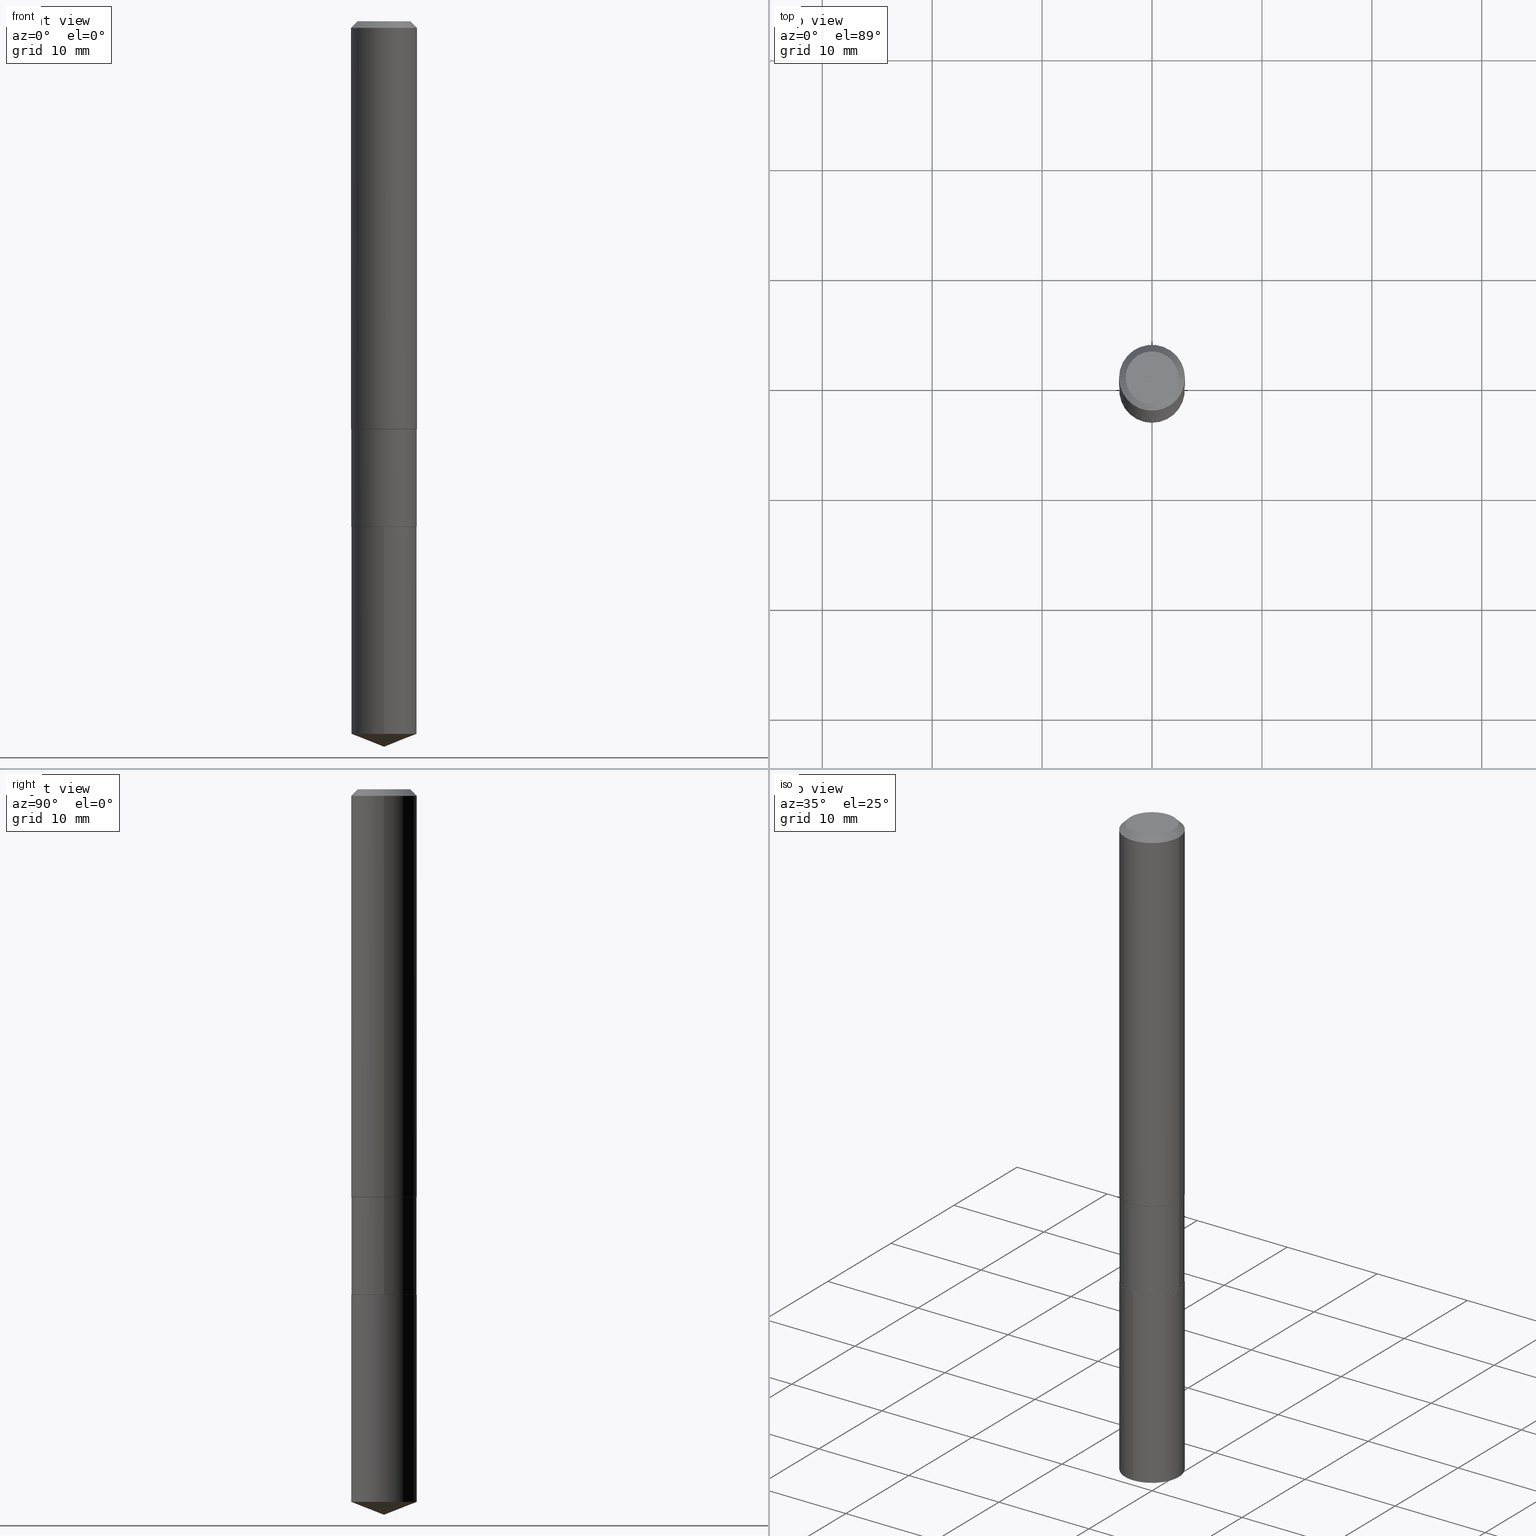
[diagram: canonical four-view strip — front | top / right | iso, engineering-drawing reading convention]
A machine part, canonical four-view strip (front | top / right | iso — engineering-drawing reading convention). The complete STEP part file that produces these views, byte-faithful:
ISO-10303-21;
HEADER;
FILE_DESCRIPTION (( 'STEP AP203' ),
    '1' );
FILE_NAME ('56409.STEP',
    '2024-04-24T17:18:07',
    ( '' ),
    ( '' ),
    'SwSTEP 2.0',
    'SolidWorks 2023',
    '' );
FILE_SCHEMA (( 'CONFIG_CONTROL_DESIGN' ));
ENDSEC;

DATA;
#1 = CALENDAR_DATE ( 2024, 24, 4 ) ;
#2 = AXIS2_PLACEMENT_3D ( 'NONE', #237, #128, #315 ) ;
#3 = EDGE_CURVE ( 'NONE', #216, #64, #41, .T. ) ;
#4 = ORIENTED_EDGE ( 'NONE', *, *, #467, .F. ) ;
#5 = AXIS2_PLACEMENT_3D ( 'NONE', #481, #365, #172 ) ;
#6 = CARTESIAN_POINT ( 'NONE',  ( -8.184032258247679381E-16, -0.1172000000000088804, -2.552233692257928510 ) ) ;
#7 = EDGE_LOOP ( 'NONE', ( #298, #334 ) ) ;
#8 = CARTESIAN_POINT ( 'NONE',  ( 0.000000000000000000, 0.000000000000000000, 0.000000000000000000 ) ) ;
#9 = CARTESIAN_POINT ( 'NONE',  ( 0.1171999999999999709, -8.184032258248302581E-16, 5.714879181232835073E-30 ) ) ;
#10 = EDGE_CURVE ( 'NONE', #490, #445, #326, .T. ) ;
#11 = CARTESIAN_POINT ( 'NONE',  ( 3.570139910149679929E-29, -5.097213606577107280E-15, -1.459899999999999531 ) ) ;
#12 = LINE ( 'NONE', #279, #19 ) ;
#13 = AXIS2_PLACEMENT_3D ( 'NONE', #42, #180, #65 ) ;
#14 = DIRECTION ( 'NONE',  ( 0.7071067811865460184, -7.319954787623251312E-15, -0.7071067811865490160 ) ) ;
#15 = ORIENTED_EDGE ( 'NONE', *, *, #471, .T. ) ;
#16 = CC_DESIGN_PERSON_AND_ORGANIZATION_ASSIGNMENT ( #489, #260, ( #428 ) ) ;
#17 = DIRECTION ( 'NONE',  ( 1.000000000000000000, -6.982962677686266711E-15, 4.876176775795935793E-29 ) ) ;
#18 = ORIENTED_EDGE ( 'NONE', *, *, #476, .T. ) ;
#19 = VECTOR ( 'NONE', #161, 39.37007874015748143 ) ;
#20 = CIRCLE ( 'NONE', #226, 0.1181000000000001632 ) ;
#21 = ORIENTED_EDGE ( 'NONE', *, *, #10, .F. ) ;
#22 = CARTESIAN_POINT ( 'NONE',  ( -0.09447999999999998066, 7.009847083995354710E-16, -2.700101262760559836E-17 ) ) ;
#23 = DIRECTION ( 'NONE',  ( 1.000000000000000000, -6.982962677686262766E-15, 0.000000000000000000 ) ) ;
#24 = DIRECTION ( 'NONE',  ( -6.982962677686265922E-15, -1.000000000000000000, 2.330928322239132474E-15 ) ) ;
#25 = CC_DESIGN_APPROVAL ( #251, ( #428 ) ) ;
#26 = LINE ( 'NONE', #478, #310 ) ;
#27 = APPROVAL ( #67, 'UNSPECIFIED' ) ;
#28 = PLANE ( 'NONE',  #337 ) ;
#29 = ORIENTED_EDGE ( 'NONE', *, *, #393, .T. ) ;
#30 = AXIS2_PLACEMENT_3D ( 'NONE', #230, #119, #72 ) ;
#31 = CIRCLE ( 'NONE', #440, 0.09447999999999998066 ) ;
#32 = ORIENTED_EDGE ( 'NONE', *, *, #209, .F. ) ;
#33 = VERTEX_POINT ( 'NONE', #391 ) ;
#34 = EDGE_CURVE ( 'NONE', #73, #33, #190, .T. ) ;
#35 = VERTEX_POINT ( 'NONE', #343 ) ;
#36 = DIRECTION ( 'NONE',  ( -6.982962677686265922E-15, -1.000000000000000000, 4.661856644478264948E-15 ) ) ;
#37 = VECTOR ( 'NONE', #348, 39.37007874015748143 ) ;
#38 = ORIENTED_EDGE ( 'NONE', *, *, #356, .F. ) ;
#39 = COORDINATED_UNIVERSAL_TIME_OFFSET ( 5, 0, .BEHIND. ) ;
#40 = CYLINDRICAL_SURFACE ( 'NONE', #169, 0.1171999999999999709 ) ;
#41 = LINE ( 'NONE', #228, #144 ) ;
#42 = CARTESIAN_POINT ( 'NONE',  ( 4.428744008001282238E-29, -6.323072704644935995E-15, -1.810999999999999943 ) ) ;
#43 = CIRCLE ( 'NONE', #289, 0.1171999999999999986 ) ;
#44 = ADVANCED_FACE ( 'NONE', ( #383 ), #138, .T. ) ;
#45 = DIRECTION ( 'NONE',  ( -1.000000000000000000, 6.982962677686266711E-15, 0.000000000000000000 ) ) ;
#46 = DIRECTION ( 'NONE',  ( -2.445468806185136597E-29, 3.491481338843145583E-15, 1.000000000000000000 ) ) ;
#47 = DIRECTION ( 'NONE',  ( 1.000000000000000000, -6.982962677686265133E-15, 0.000000000000000000 ) ) ;
#48 = EDGE_LOOP ( 'NONE', ( #182, #364, #446, #4 ) ) ;
#49 = APPROVAL_PERSON_ORGANIZATION ( #114, #27, #351 ) ;
#50 = FACE_OUTER_BOUND ( 'NONE', #164, .T. ) ;
#51 = DIRECTION ( 'NONE',  ( -2.438088387897960049E-29, 3.491481338843145188E-15, 1.000000000000000000 ) ) ;
#52 = CALENDAR_DATE ( 2024, 24, 4 ) ;
#53 = CONICAL_SURFACE ( 'NONE', #30, 99.94676754583977640, 1.195550537616118847 ) ;
#54 = VECTOR ( 'NONE', #63, 39.37007874015748143 ) ;
#55 = EDGE_CURVE ( 'NONE', #340, #325, #92, .T. ) ;
#56 = ORIENTED_EDGE ( 'NONE', *, *, #393, .F. ) ;
#57 = FACE_OUTER_BOUND ( 'NONE', #154, .T. ) ;
#58 = ORIENTED_EDGE ( 'NONE', *, *, #3, .F. ) ;
#59 = EDGE_LOOP ( 'NONE', ( #15, #225, #102, #448 ) ) ;
#60 = EDGE_CURVE ( 'NONE', #33, #244, #390, .T. ) ;
#61 = COORDINATED_UNIVERSAL_TIME_OFFSET ( 5, 0, .BEHIND. ) ;
#62 = AXIS2_PLACEMENT_3D ( 'NONE', #8, #312, #463 ) ;
#63 = DIRECTION ( 'NONE',  ( -0.7071067811865340280, 7.493145998870305251E-15, 0.7071067811865610064 ) ) ;
#64 = VERTEX_POINT ( 'NONE', #384 ) ;
#65 = DIRECTION ( 'NONE',  ( 1.000000000000000000, -6.982962677686265133E-15, 0.000000000000000000 ) ) ;
#66 = ORIENTED_EDGE ( 'NONE', *, *, #166, .T. ) ;
#67 = APPROVAL_STATUS ( 'not_yet_approved' ) ;
#68 = CYLINDRICAL_SURFACE ( 'NONE', #82, 0.1171999999999999986 ) ;
#69 = ORIENTED_EDGE ( 'NONE', *, *, #150, .T. ) ;
#70 = DATE_AND_TIME ( #454, #236 ) ;
#71 = ADVANCED_FACE ( 'NONE', ( #198 ), #316, .T. ) ;
#72 = DIRECTION ( 'NONE',  ( -6.982962677686265922E-15, -1.000000000000000000, 3.498627837350010928E-15 ) ) ;
#73 = VERTEX_POINT ( 'NONE', #160 ) ;
#74 = CIRCLE ( 'NONE', #201, 0.1180999999999999966 ) ;
#75 = ORIENTED_EDGE ( 'NONE', *, *, #107, .F. ) ;
#76 = DIRECTION ( 'NONE',  ( 2.438088387897960049E-29, -3.491481338843145188E-15, -1.000000000000000000 ) ) ;
#77 = DIRECTION ( 'NONE',  ( -2.445468806185136597E-29, 3.491481338843145583E-15, 1.000000000000000000 ) ) ;
#78 = DIRECTION ( 'NONE',  ( 1.000000000000000000, -6.982962677686266711E-15, 0.000000000000000000 ) ) ;
#79 = CARTESIAN_POINT ( 'NONE',  ( 0.1166999999999999982, -7.137984449130923049E-15, -1.810999999999999943 ) ) ;
#80 = ORIENTED_EDGE ( 'NONE', *, *, #476, .F. ) ;
#81 = AXIS2_PLACEMENT_3D ( 'NONE', #359, #429, #23 ) ;
#82 = AXIS2_PLACEMENT_3D ( 'NONE', #461, #207, #210 ) ;
#83 = APPROVAL ( #265, 'UNSPECIFIED' ) ;
#84 = DIRECTION ( 'NONE',  ( -2.445468806185136597E-29, 3.491481338843145583E-15, 1.000000000000000000 ) ) ;
#85 = LINE ( 'NONE', #238, #211 ) ;
#86 = ADVANCED_FACE ( 'NONE', ( #204 ), #308, .T. ) ;
#87 = CARTESIAN_POINT ( 'NONE',  ( 3.572340832075246748E-29, -5.100355939782065986E-15, -1.460799999999999876 ) ) ;
#88 = VERTEX_POINT ( 'NONE', #165 ) ;
#89 = APPROVAL_DATE_TIME ( #480, #27 ) ;
#90 = MECHANICAL_CONTEXT ( 'NONE', #174, 'mechanical' ) ;
#91 = EDGE_CURVE ( 'NONE', #432, #73, #466, .T. ) ;
#92 = CIRCLE ( 'NONE', #416, 0.1171999999999999986 ) ;
#93 = LOCAL_TIME ( 13, 18, 7.000000000000000000, #375 ) ;
#94 = CARTESIAN_POINT ( 'NONE',  ( 5.776197320209327532E-31, -8.246878922347559293E-17, -0.02362000000000014088 ) ) ;
#95 = CARTESIAN_POINT ( 'NONE',  ( 3.572340832075246748E-29, -5.100355939782065986E-15, -1.460799999999999876 ) ) ;
#96 = LINE ( 'NONE', #176, #54 ) ;
#97 =( NAMED_UNIT ( * ) PLANE_ANGLE_UNIT ( ) SI_UNIT ( $, .RADIAN. ) );
#98 = EDGE_LOOP ( 'NONE', ( #224, #69, #177, #423 ) ) ;
#99 = CLOSED_SHELL ( 'NONE', ( #246, #388, #232, #404, #318 ) ) ;
#100 = CIRCLE ( 'NONE', #139, 0.1171999999999999986 ) ;
#101 = FACE_OUTER_BOUND ( 'NONE', #98, .T. ) ;
#102 = ORIENTED_EDGE ( 'NONE', *, *, #282, .F. ) ;
#103 = APPROVAL_DATE_TIME ( #442, #251 ) ;
#104 = EDGE_LOOP ( 'NONE', ( #58, #482, #368, #410 ) ) ;
#105 = DIMENSIONAL_EXPONENTS ( 1.000000000000000000, 0.000000000000000000, 0.000000000000000000, 0.000000000000000000, 0.000000000000000000, 0.000000000000000000, 0.000000000000000000 ) ;
#106 = APPLICATION_PROTOCOL_DEFINITION ( 'international standard', 'config_control_design', 1994, #406 ) ;
#107 = EDGE_CURVE ( 'NONE', #374, #254, #381, .T. ) ;
#108 = EDGE_LOOP ( 'NONE', ( #255, #403, #248, #120 ) ) ;
#109 = VECTOR ( 'NONE', #127, 39.37007874015748143 ) ;
#110 = CALENDAR_DATE ( 2024, 24, 4 ) ;
#111 = DIRECTION ( 'NONE',  ( -6.982962677686265922E-15, -1.000000000000000000, 3.498627837350010928E-15 ) ) ;
#112 = ORIENTED_EDGE ( 'NONE', *, *, #155, .F. ) ;
#113 = EDGE_CURVE ( 'NONE', #244, #35, #12, .T. ) ;
#114 = PERSON_AND_ORGANIZATION ( #249, #132 ) ;
#115 = LINE ( 'NONE', #425, #433 ) ;
#116 = EDGE_LOOP ( 'NONE', ( #29, #157 ) ) ;
#117 = EDGE_CURVE ( 'NONE', #437, #340, #85, .T. ) ;
#118 = DATE_TIME_ROLE ( 'creation_date' ) ;
#119 = DIRECTION ( 'NONE',  ( -2.445866323305288275E-29, 3.490912071701818882E-15, 1.000000000000000000 ) ) ;
#120 = ORIENTED_EDGE ( 'NONE', *, *, #60, .F. ) ;
#121 = LINE ( 'NONE', #200, #256 ) ;
#122 = CYLINDRICAL_SURFACE ( 'NONE', #62, 0.1181000000000000799 ) ;
#123 = DIRECTION ( 'NONE',  ( 2.445468806185136597E-29, -3.491481338843145583E-15, -1.000000000000000000 ) ) ;
#124 = FACE_OUTER_BOUND ( 'NONE', #116, .T. ) ;
#125 = DIRECTION ( 'NONE',  ( 1.000000000000000000, -6.982962677686265133E-15, 0.000000000000000000 ) ) ;
#126 = CARTESIAN_POINT ( 'NONE',  ( -0.1166999999999999982, -5.493869332012898894E-15, -1.810999999999999943 ) ) ;
#127 = DIRECTION ( 'NONE',  ( 0.7071067811866078578, -2.468850131082888544E-15, 0.7071067811864871766 ) ) ;
#128 = DIRECTION ( 'NONE',  ( -2.445468806185136597E-29, 3.491481338843145583E-15, 1.000000000000000000 ) ) ;
#129 = EDGE_CURVE ( 'NONE', #88, #64, #407, .T. ) ;
#130 = DIRECTION ( 'NONE',  ( -6.982962677686265922E-15, -1.000000000000000000, 2.330928322239132474E-15 ) ) ;
#131 = VECTOR ( 'NONE', #465, 39.37007874015748143 ) ;
#132 = ORGANIZATION ( 'UNSPECIFIED', 'UNSPECIFIED', '' ) ;
#133 = MANIFOLD_SOLID_BREP ( 'Body-Move/Copy2[2]', #483 ) ;
#134 = PRODUCT_RELATED_PRODUCT_CATEGORY ( 'detail', '', ( #345 ) ) ;
#135 = PRODUCT_DEFINITION_SHAPE ( 'NONE', 'NONE',  #179 ) ;
#136 =( CONVERSION_BASED_UNIT ( 'INCH', #181 ) LENGTH_UNIT ( ) NAMED_UNIT ( #105 ) );
#137 = CARTESIAN_POINT ( 'NONE',  ( 0.000000000000000000, 0.000000000000000000, 0.000000000000000000 ) ) ;
#138 = CONICAL_SURFACE ( 'NONE', #394, 0.1166999999999999982, 0.7853981633975336552 ) ;
#139 = AXIS2_PLACEMENT_3D ( 'NONE', #320, #285, #24 ) ;
#140 = CARTESIAN_POINT ( 'NONE',  ( 4.428744008001282238E-29, -6.323072704644935995E-15, -1.810999999999999943 ) ) ;
#141 =( LENGTH_UNIT ( ) NAMED_UNIT ( * ) SI_UNIT ( $, .METRE. ) );
#142 = MANIFOLD_SOLID_BREP ( 'Body-Move/Copy2[1]', #99 ) ;
#143 = CARTESIAN_POINT ( 'NONE',  ( 0.09447999999999998066, -7.704367267948738690E-16, -2.700101262759583929E-17 ) ) ;
#144 = VECTOR ( 'NONE', #430, 39.37007874015748143 ) ;
#145 = VECTOR ( 'NONE', #147, 39.37007874015748143 ) ;
#146 = PERSON_AND_ORGANIZATION_ROLE ( 'creator' ) ;
#147 = DIRECTION ( 'NONE',  ( -2.445866323305287994E-29, 3.490912071701818882E-15, 1.000000000000000000 ) ) ;
#148 = EDGE_LOOP ( 'NONE', ( #313, #56, #66, #221 ) ) ;
#149 = DATE_AND_TIME ( #110, #449 ) ;
#150 = EDGE_CURVE ( 'NONE', #432, #408, #184, .T. ) ;
#151 = EDGE_LOOP ( 'NONE', ( #21, #328, #295, #280 ) ) ;
#152 = ORIENTED_EDGE ( 'NONE', *, *, #297, .T. ) ;
#153 = DATE_AND_TIME ( #1, #93 ) ;
#154 = EDGE_LOOP ( 'NONE', ( #324, #262 ) ) ;
#155 = EDGE_CURVE ( 'NONE', #35, #216, #459, .T. ) ;
#156 = APPROVAL_DATE_TIME ( #149, #83 ) ;
#157 = ORIENTED_EDGE ( 'NONE', *, *, #10, .T. ) ;
#158 = CARTESIAN_POINT ( 'NONE',  ( -8.184032258247860819E-16, -0.1172000000000063130, -1.810999999999999721 ) ) ;
#159 = DIRECTION ( 'NONE',  ( -2.445468806185136597E-29, 3.491481338843145583E-15, 1.000000000000000000 ) ) ;
#160 = CARTESIAN_POINT ( 'NONE',  ( -0.1171999999999999986, -4.878085365567953422E-15, -1.810499999999999998 ) ) ;
#161 = DIRECTION ( 'NONE',  ( 0.7071067811865340280, -2.468850131082115460E-15, 0.7071067811865610064 ) ) ;
#162 = LOCAL_TIME ( 13, 18, 7.000000000000000000, #398 ) ;
#163 = FACE_OUTER_BOUND ( 'NONE', #371, .T. ) ;
#164 = EDGE_LOOP ( 'NONE', ( #152, #452, #112, #405 ) ) ;
#165 = CARTESIAN_POINT ( 'NONE',  ( 0.1180999999999999966, -9.071566814582237199E-16, -0.02362000000000014088 ) ) ;
#166 = EDGE_CURVE ( 'NONE', #445, #64, #379, .T. ) ;
#167 = CARTESIAN_POINT ( 'NONE',  ( -0.1180999999999999966, 7.422191030112725094E-16, -0.02362000000000014088 ) ) ;
#168 = AXIS2_PLACEMENT_3D ( 'NONE', #419, #202, #130 ) ;
#169 = AXIS2_PLACEMENT_3D ( 'NONE', #303, #263, #197 ) ;
#170 = EDGE_CURVE ( 'NONE', #437, #325, #121, .T. ) ;
#171 = SHAPE_DEFINITION_REPRESENTATION ( #135, #470 ) ;
#172 = DIRECTION ( 'NONE',  ( 1.000000000000000000, -6.982962677686265133E-15, 0.000000000000000000 ) ) ;
#173 = DIRECTION ( 'NONE',  ( -1.000000000000000000, 6.982962677686265922E-15, -4.876176775795935793E-29 ) ) ;
#174 = APPLICATION_CONTEXT ( 'configuration controlled 3d designs of mechanical parts and assemblies' ) ;
#175 = LINE ( 'NONE', #322, #131 ) ;
#176 = CARTESIAN_POINT ( 'NONE',  ( -0.1171999999999999431, -4.267599853471229564E-15, -1.460799999999999876 ) ) ;
#177 = ORIENTED_EDGE ( 'NONE', *, *, #243, .T. ) ;
#178 = CIRCLE ( 'NONE', #81, 0.1171999999999999847 ) ;
#179 = PRODUCT_DEFINITION ( 'UNKNOWN', '', #428, #203 ) ;
#180 = DIRECTION ( 'NONE',  ( -2.445468806185136597E-29, 3.491481338843145583E-15, 1.000000000000000000 ) ) ;
#181 = LENGTH_MEASURE_WITH_UNIT ( LENGTH_MEASURE( 0.02539999999999999897 ), #141 );
#182 = ORIENTED_EDGE ( 'NONE', *, *, #155, .T. ) ;
#183 = EDGE_CURVE ( 'NONE', #490, #88, #115, .T. ) ;
#184 = CIRCLE ( 'NONE', #13, 0.1166999999999999982 ) ;
#185 = ORIENTED_EDGE ( 'NONE', *, *, #34, .T. ) ;
#186 = DIRECTION ( 'NONE',  ( 1.000000000000000000, -6.982962677686267499E-15, 4.875432709231658792E-29 ) ) ;
#187 = EDGE_LOOP ( 'NONE', ( #488, #185, #271, #231 ) ) ;
#188 = PERSON_AND_ORGANIZATION ( #249, #132 ) ;
#189 = EDGE_LOOP ( 'NONE', ( #240, #380, #32 ) ) ;
#190 = CIRCLE ( 'NONE', #2, 0.1171999999999999847 ) ;
#191 = SECURITY_CLASSIFICATION ( '', '', #372 ) ;
#192 = FACE_OUTER_BOUND ( 'NONE', #441, .T. ) ;
#193 = ORIENTED_EDGE ( 'NONE', *, *, #209, .T. ) ;
#194 = DIRECTION ( 'NONE',  ( 6.982962677686265922E-15, 1.000000000000000000, -3.490912071701818882E-15 ) ) ;
#195 = DIRECTION ( 'NONE',  ( -6.982962677686265922E-15, -1.000000000000000000, 2.330928322239132474E-15 ) ) ;
#196 = DIRECTION ( 'NONE',  ( 1.000000000000000000, -6.982962677686267499E-15, 4.875432709231658792E-29 ) ) ;
#197 = DIRECTION ( 'NONE',  ( 1.000000000000000000, -6.982962677686266711E-15, 4.876176775795935793E-29 ) ) ;
#198 = FACE_OUTER_BOUND ( 'NONE', #151, .T. ) ;
#199 = AXIS2_PLACEMENT_3D ( 'NONE', #274, #159, #307 ) ;
#200 = CARTESIAN_POINT ( 'NONE',  ( 6.353899247467270624E-29, -9.072847812695893785E-15, -2.598399999999999821 ) ) ;
#201 = AXIS2_PLACEMENT_3D ( 'NONE', #94, #360, #286 ) ;
#202 = DIRECTION ( 'NONE',  ( -2.445866323305288275E-29, 3.490912071701818882E-15, 1.000000000000000000 ) ) ;
#203 = DESIGN_CONTEXT ( 'detailed design', #406, 'design' ) ;
#204 = FACE_OUTER_BOUND ( 'NONE', #187, .T. ) ;
#205 = ADVANCED_FACE ( 'NONE', ( #192 ), #473, .T. ) ;
#206 = CC_DESIGN_APPROVAL ( #83, ( #179 ) ) ;
#207 = DIRECTION ( 'NONE',  ( -2.445866323305288275E-29, 3.490912071701818882E-15, 1.000000000000000000 ) ) ;
#208 =( NAMED_UNIT ( * ) SI_UNIT ( $, .STERADIAN. ) SOLID_ANGLE_UNIT ( ) );
#209 = EDGE_CURVE ( 'NONE', #325, #340, #43, .T. ) ;
#210 = DIRECTION ( 'NONE',  ( -6.982962677686265922E-15, -1.000000000000000000, 2.330928322239132474E-15 ) ) ;
#211 = VECTOR ( 'NONE', #311, 39.37007874015748854 ) ;
#212 = AXIS2_PLACEMENT_3D ( 'NONE', #335, #453, #194 ) ;
#213 = DIRECTION ( 'NONE',  ( -2.445468806185136877E-29, 3.491481338843145188E-15, 1.000000000000000000 ) ) ;
#214 = CARTESIAN_POINT ( 'NONE',  ( 0.1166999999999999982, -7.137984449130923049E-15, -1.810999999999999943 ) ) ;
#215 = CC_DESIGN_PERSON_AND_ORGANIZATION_ASSIGNMENT ( #296, #222, ( #428 ) ) ;
#216 = VERTEX_POINT ( 'NONE', #233 ) ;
#217 = VERTEX_POINT ( 'NONE', #267 ) ;
#218 = APPROVAL_PERSON_ORGANIZATION ( #338, #83, #301 ) ;
#219 = PERSON_AND_ORGANIZATION ( #249, #132 ) ;
#220 = CARTESIAN_POINT ( 'NONE',  ( 6.603013411620882309E-46, -9.427353171913646324E-32, -2.700101262760083747E-17 ) ) ;
#221 = ORIENTED_EDGE ( 'NONE', *, *, #438, .T. ) ;
#222 = PERSON_AND_ORGANIZATION_ROLE ( 'design_supplier' ) ;
#223 = DIRECTION ( 'NONE',  ( -2.445468806185136597E-29, 3.491481338843145583E-15, 1.000000000000000000 ) ) ;
#224 = ORIENTED_EDGE ( 'NONE', *, *, #91, .F. ) ;
#225 = ORIENTED_EDGE ( 'NONE', *, *, #91, .T. ) ;
#226 = AXIS2_PLACEMENT_3D ( 'NONE', #253, #291, #444 ) ;
#227 = CARTESIAN_POINT ( 'NONE',  ( 0.1171999999999999431, -5.918759165606896047E-15, -1.460799999999999876 ) ) ;
#228 = CARTESIAN_POINT ( 'NONE',  ( -0.1181000000000000799, 8.391509709326788873E-16, -5.809262341591047988E-30 ) ) ;
#229 = FACE_OUTER_BOUND ( 'NONE', #108, .T. ) ;
#230 = CARTESIAN_POINT ( 'NONE',  ( -8.993933058545681115E-28, 1.283656662679639301E-13, 36.77167874015748339 ) ) ;
#231 = ORIENTED_EDGE ( 'NONE', *, *, #266, .F. ) ;
#232 = ADVANCED_FACE ( 'NONE', ( #163 ), #53, .T. ) ;
#233 = CARTESIAN_POINT ( 'NONE',  ( -0.1181000000000001632, -4.258062635644427505E-15, -1.459899999999999531 ) ) ;
#234 = CARTESIAN_POINT ( 'NONE',  ( 5.776197320209327532E-31, -8.246878922347559293E-17, -0.02362000000000014088 ) ) ;
#235 = AXIS2_PLACEMENT_3D ( 'NONE', #241, #392, #469 ) ;
#236 = LOCAL_TIME ( 13, 18, 7.000000000000000000, #304 ) ;
#237 = CARTESIAN_POINT ( 'NONE',  ( 4.427521273598189436E-29, -6.321326963975514491E-15, -1.810499999999999998 ) ) ;
#238 = CARTESIAN_POINT ( 'NONE',  ( 6.355351679884375868E-29, -9.070785927110006461E-15, -2.598399999999999821 ) ) ;
#239 = CYLINDRICAL_SURFACE ( 'NONE', #387, 0.1181000000000000799 ) ;
#240 = ORIENTED_EDGE ( 'NONE', *, *, #170, .F. ) ;
#241 = CARTESIAN_POINT ( 'NONE',  ( 5.776197320209327532E-31, -8.246878922347559293E-17, -0.02362000000000014088 ) ) ;
#242 = AXIS2_PLACEMENT_3D ( 'NONE', #464, #415, #196 ) ;
#243 = EDGE_CURVE ( 'NONE', #408, #33, #339, .T. ) ;
#244 = VERTEX_POINT ( 'NONE', #227 ) ;
#245 = LINE ( 'NONE', #475, #389 ) ;
#246 = ADVANCED_FACE ( 'NONE', ( #385 ), #347, .T. ) ;
#247 = LINE ( 'NONE', #484, #145 ) ;
#248 = ORIENTED_EDGE ( 'NONE', *, *, #297, .F. ) ;
#249 = PERSON ( 'UNSPECIFIED', 'UNSPECIFIED', 'UNSPECIFIED', ('UNSPECIFIED'), ('UNSPECIFIED'), ('UNSPECIFIED') ) ;
#250 = DIRECTION ( 'NONE',  ( -2.445468806185136597E-29, 3.491481338843145583E-15, 1.000000000000000000 ) ) ;
#251 = APPROVAL ( #370, 'UNSPECIFIED' ) ;
#252 = ORIENTED_EDGE ( 'NONE', *, *, #367, .F. ) ;
#253 = CARTESIAN_POINT ( 'NONE',  ( 3.570139910149679929E-29, -5.097213606577107280E-15, -1.459899999999999531 ) ) ;
#254 = VERTEX_POINT ( 'NONE', #418 ) ;
#255 = ORIENTED_EDGE ( 'NONE', *, *, #282, .T. ) ;
#256 = VECTOR ( 'NONE', #451, 39.37007874015748143 ) ;
#257 = AXIS2_PLACEMENT_3D ( 'NONE', #87, #84, #47 ) ;
#258 = ORIENTED_EDGE ( 'NONE', *, *, #117, .F. ) ;
#259 = ADVANCED_FACE ( 'NONE', ( #342 ), #122, .T. ) ;
#260 = PERSON_AND_ORGANIZATION_ROLE ( 'creator' ) ;
#261 = FACE_OUTER_BOUND ( 'NONE', #189, .T. ) ;
#262 = ORIENTED_EDGE ( 'NONE', *, *, #150, .F. ) ;
#263 = DIRECTION ( 'NONE',  ( -2.445468806185136597E-29, 3.491481338843145583E-15, 1.000000000000000000 ) ) ;
#264 = PLANE ( 'NONE',  #212 ) ;
#265 = APPROVAL_STATUS ( 'not_yet_approved' ) ;
#266 = EDGE_CURVE ( 'NONE', #217, #244, #336, .T. ) ;
#267 = CARTESIAN_POINT ( 'NONE',  ( -0.1171999999999999431, -4.878085365567953422E-15, -1.460799999999999876 ) ) ;
#268 = DIRECTION ( 'NONE',  ( 1.000000000000000000, -6.982962677686265133E-15, 0.000000000000000000 ) ) ;
#269 = ADVANCED_FACE ( 'NONE', ( #270 ), #239, .T. ) ;
#270 = FACE_OUTER_BOUND ( 'NONE', #48, .T. ) ;
#271 = ORIENTED_EDGE ( 'NONE', *, *, #60, .T. ) ;
#272 = PLANE ( 'NONE',  #354 ) ;
#273 = DIRECTION ( 'NONE',  ( -0.7071067811866078578, 7.493145998870571886E-15, 0.7071067811864871766 ) ) ;
#274 = CARTESIAN_POINT ( 'NONE',  ( 3.572340832075246748E-29, -5.100355939782065986E-15, -1.460799999999999876 ) ) ;
#275 = DIRECTION ( 'NONE',  ( -2.445866323305288275E-29, 3.490912071701818882E-15, 1.000000000000000000 ) ) ;
#276 = ADVANCED_FACE ( 'NONE', ( #472 ), #447, .T. ) ;
#277 = AXIS2_PLACEMENT_3D ( 'NONE', #11, #479, #333 ) ;
#278 = CIRCLE ( 'NONE', #257, 0.1171999999999999431 ) ;
#279 = CARTESIAN_POINT ( 'NONE',  ( 0.1171999999999999431, -5.918759165606896047E-15, -1.460799999999999876 ) ) ;
#280 = ORIENTED_EDGE ( 'NONE', *, *, #166, .F. ) ;
#281 = DIRECTION ( 'NONE',  ( -2.445866323305287994E-29, 3.490912071701818882E-15, 1.000000000000000000 ) ) ;
#282 = EDGE_CURVE ( 'NONE', #33, #73, #178, .T. ) ;
#283 = AXIS2_PLACEMENT_3D ( 'NONE', #422, #77, #125 ) ;
#284 = CC_DESIGN_APPROVAL ( #27, ( #191 ) ) ;
#285 = DIRECTION ( 'NONE',  ( -2.445866323305288275E-29, 3.490912071701818882E-15, 1.000000000000000000 ) ) ;
#286 = DIRECTION ( 'NONE',  ( 1.000000000000000000, -6.982962677686266711E-15, 0.000000000000000000 ) ) ;
#287 = CC_DESIGN_DATE_AND_TIME_ASSIGNMENT ( #153, #450, ( #191 ) ) ;
#288 = DIRECTION ( 'NONE',  ( 1.000000000000000000, -6.982962677686265133E-15, 0.000000000000000000 ) ) ;
#289 = AXIS2_PLACEMENT_3D ( 'NONE', #378, #414, #36 ) ;
#290 = AXIS2_PLACEMENT_3D ( 'NONE', #396, #250, #363 ) ;
#291 = DIRECTION ( 'NONE',  ( -2.445468806185136597E-29, 3.491481338843145583E-15, 1.000000000000000000 ) ) ;
#292 = ORIENTED_EDGE ( 'NONE', *, *, #55, .T. ) ;
#293 = PERSON_AND_ORGANIZATION ( #249, #132 ) ;
#294 = EDGE_CURVE ( 'NONE', #73, #217, #175, .T. ) ;
#295 = ORIENTED_EDGE ( 'NONE', *, *, #129, .T. ) ;
#296 = PERSON_AND_ORGANIZATION ( #249, #132 ) ;
#297 = EDGE_CURVE ( 'NONE', #244, #217, #278, .T. ) ;
#298 = ORIENTED_EDGE ( 'NONE', *, *, #107, .T. ) ;
#299 = AXIS2_PLACEMENT_3D ( 'NONE', #234, #352, #78 ) ;
#300 = CC_DESIGN_SECURITY_CLASSIFICATION ( #191, ( #428 ) ) ;
#301 = APPROVAL_ROLE ( '' ) ;
#302 = ORIENTED_EDGE ( 'NONE', *, *, #266, .T. ) ;
#303 = CARTESIAN_POINT ( 'NONE',  ( 0.000000000000000000, 0.000000000000000000, 0.000000000000000000 ) ) ;
#304 = COORDINATED_UNIVERSAL_TIME_OFFSET ( 5, 0, .BEHIND. ) ;
#305 = EDGE_LOOP ( 'NONE', ( #80, #292, #355, #331 ) ) ;
#306 = CC_DESIGN_DATE_AND_TIME_ASSIGNMENT ( #70, #118, ( #179 ) ) ;
#307 = DIRECTION ( 'NONE',  ( 1.000000000000000000, -6.982962677686265133E-15, 0.000000000000000000 ) ) ;
#308 = CYLINDRICAL_SURFACE ( 'NONE', #427, 0.1171999999999999709 ) ;
#309 = VECTOR ( 'NONE', #477, 39.37007874015748143 ) ;
#310 = VECTOR ( 'NONE', #281, 39.37007874015748143 ) ;
#311 = DIRECTION ( 'NONE',  ( 6.611014441532064222E-15, 0.9304175679820269051, 0.3665012267242910848 ) ) ;
#312 = DIRECTION ( 'NONE',  ( -2.445468806185136597E-29, 3.491481338843145583E-15, 1.000000000000000000 ) ) ;
#313 = ORIENTED_EDGE ( 'NONE', *, *, #183, .F. ) ;
#314 = UNCERTAINTY_MEASURE_WITH_UNIT (LENGTH_MEASURE( 1.000000000000000082E-05 ), #136, 'distance_accuracy_value', 'NONE');
#315 = DIRECTION ( 'NONE',  ( 1.000000000000000000, -6.982962677686262766E-15, 0.000000000000000000 ) ) ;
#316 = CONICAL_SURFACE ( 'NONE', #439, 0.1180999999999999966, 0.7853981633974461696 ) ;
#317 = DIRECTION ( 'NONE',  ( -2.445468806185136597E-29, 3.491481338843145583E-15, 1.000000000000000000 ) ) ;
#318 = ADVANCED_FACE ( 'NONE', ( #421 ), #264, .F. ) ;
#319 = CARTESIAN_POINT ( 'NONE',  ( 6.355339054476460416E-29, -9.070785927110006461E-15, -2.598399999999999821 ) ) ;
#320 = CARTESIAN_POINT ( 'NONE',  ( 4.428744008001282238E-29, -6.323072704644935995E-15, -1.810999999999999943 ) ) ;
#321 = DIRECTION ( 'NONE',  ( 1.000000000000000000, 0.000000000000000000, 0.000000000000000000 ) ) ;
#322 = CARTESIAN_POINT ( 'NONE',  ( -0.1171999999999999709, 8.327560863108372108E-16, -5.764991925778747720E-30 ) ) ;
#323 = AXIS2_PLACEMENT_3D ( 'NONE', #395, #357, #321 ) ;
#324 = ORIENTED_EDGE ( 'NONE', *, *, #471, .F. ) ;
#325 = VERTEX_POINT ( 'NONE', #6 ) ;
#326 = CIRCLE ( 'NONE', #242, 0.09447999999999998066 ) ;
#327 = LOCAL_TIME ( 13, 18, 7.000000000000000000, #39 ) ;
#328 = ORIENTED_EDGE ( 'NONE', *, *, #183, .T. ) ;
#329 = CALENDAR_DATE ( 2024, 24, 4 ) ;
#330 = ADVANCED_FACE ( 'NONE', ( #229 ), #40, .T. ) ;
#331 = ORIENTED_EDGE ( 'NONE', *, *, #361, .F. ) ;
#332 = PERSON_AND_ORGANIZATION_ROLE ( 'classification_officer' ) ;
#333 = DIRECTION ( 'NONE',  ( 1.000000000000000000, -6.982962677686270655E-15, 0.000000000000000000 ) ) ;
#334 = ORIENTED_EDGE ( 'NONE', *, *, #361, .T. ) ;
#335 = CARTESIAN_POINT ( 'NONE',  ( 4.428744008001282238E-29, -6.323072704644935995E-15, -1.810999999999999943 ) ) ;
#336 = CIRCLE ( 'NONE', #199, 0.1171999999999999431 ) ;
#337 = AXIS2_PLACEMENT_3D ( 'NONE', #140, #51, #434 ) ;
#338 = PERSON_AND_ORGANIZATION ( #249, #132 ) ;
#339 = LINE ( 'NONE', #79, #109 ) ;
#340 = VERTEX_POINT ( 'NONE', #458 ) ;
#341 = ADVANCED_FACE ( 'NONE', ( #124 ), #272, .F. ) ;
#342 = FACE_OUTER_BOUND ( 'NONE', #104, .T. ) ;
#343 = CARTESIAN_POINT ( 'NONE',  ( 0.1181000000000001632, -5.921901498811854753E-15, -1.459899999999999531 ) ) ;
#344 = DIRECTION ( 'NONE',  ( -2.445468806185136597E-29, 3.491481338843145583E-15, 1.000000000000000000 ) ) ;
#345 = PRODUCT ( '56409', '56409', '', ( #90 ) ) ;
#346 = CONICAL_SURFACE ( 'NONE', #362, 99.94676754583977640, 1.195550537616118847 ) ;
#347 = CYLINDRICAL_SURFACE ( 'NONE', #353, 0.1171999999999999986 ) ;
#348 = DIRECTION ( 'NONE',  ( -2.445468806185136877E-29, 3.491481338843145188E-15, 1.000000000000000000 ) ) ;
#349 = EDGE_CURVE ( 'NONE', #325, #374, #247, .T. ) ;
#350 = ORIENTED_EDGE ( 'NONE', *, *, #55, .F. ) ;
#351 = APPROVAL_ROLE ( '' ) ;
#352 = DIRECTION ( 'NONE',  ( -2.445468806185136597E-29, 3.491481338843145583E-15, 1.000000000000000000 ) ) ;
#353 = AXIS2_PLACEMENT_3D ( 'NONE', #382, #456, #195 ) ;
#354 = AXIS2_PLACEMENT_3D ( 'NONE', #420, #76, #173 ) ;
#355 = ORIENTED_EDGE ( 'NONE', *, *, #349, .T. ) ;
#356 = EDGE_CURVE ( 'NONE', #216, #35, #20, .T. ) ;
#357 = DIRECTION ( 'NONE',  ( 0.000000000000000000, 0.000000000000000000, 1.000000000000000000 ) ) ;
#358 = PERSON_AND_ORGANIZATION ( #249, #132 ) ;
#359 = CARTESIAN_POINT ( 'NONE',  ( 4.427521273598189436E-29, -6.321326963975514491E-15, -1.810499999999999998 ) ) ;
#360 = DIRECTION ( 'NONE',  ( -2.445468806185136597E-29, 3.491481338843145583E-15, 1.000000000000000000 ) ) ;
#361 = EDGE_CURVE ( 'NONE', #254, #374, #100, .T. ) ;
#362 = AXIS2_PLACEMENT_3D ( 'NONE', #377, #412, #111 ) ;
#363 = DIRECTION ( 'NONE',  ( 1.000000000000000000, -6.982962677686265133E-15, 0.000000000000000000 ) ) ;
#364 = ORIENTED_EDGE ( 'NONE', *, *, #3, .T. ) ;
#365 = DIRECTION ( 'NONE',  ( -2.445468806185136597E-29, 3.491481338843145583E-15, 1.000000000000000000 ) ) ;
#366 = ORIENTED_EDGE ( 'NONE', *, *, #113, .T. ) ;
#367 = EDGE_CURVE ( 'NONE', #217, #216, #96, .T. ) ;
#368 = ORIENTED_EDGE ( 'NONE', *, *, #467, .T. ) ;
#369 =( GEOMETRIC_REPRESENTATION_CONTEXT ( 3 ) GLOBAL_UNCERTAINTY_ASSIGNED_CONTEXT ( ( #314 ) ) GLOBAL_UNIT_ASSIGNED_CONTEXT ( ( #136, #97, #208 ) ) REPRESENTATION_CONTEXT ( 'NONE', 'WORKASPACE' ) );
#370 = APPROVAL_STATUS ( 'not_yet_approved' ) ;
#371 = EDGE_LOOP ( 'NONE', ( #258, #401, #350 ) ) ;
#372 = SECURITY_CLASSIFICATION_LEVEL ( 'unclassified' ) ;
#373 = FACE_OUTER_BOUND ( 'NONE', #305, .T. ) ;
#374 = VERTEX_POINT ( 'NONE', #158 ) ;
#375 = COORDINATED_UNIVERSAL_TIME_OFFSET ( 5, 0, .BEHIND. ) ;
#376 = CC_DESIGN_PERSON_AND_ORGANIZATION_ASSIGNMENT ( #188, #332, ( #191 ) ) ;
#377 = CARTESIAN_POINT ( 'NONE',  ( -8.993933058545681115E-28, 1.283656662679639301E-13, 36.77167874015748339 ) ) ;
#378 = CARTESIAN_POINT ( 'NONE',  ( 6.241702533594187393E-29, -8.910654348900252712E-15, -2.552233692257928954 ) ) ;
#379 = LINE ( 'NONE', #167, #309 ) ;
#380 = ORIENTED_EDGE ( 'NONE', *, *, #117, .T. ) ;
#381 = CIRCLE ( 'NONE', #168, 0.1171999999999999986 ) ;
#382 = CARTESIAN_POINT ( 'NONE',  ( 4.428744008001282238E-29, -6.323072704644935995E-15, -1.810999999999999943 ) ) ;
#383 = FACE_OUTER_BOUND ( 'NONE', #59, .T. ) ;
#384 = CARTESIAN_POINT ( 'NONE',  ( -0.1180999999999999966, -1.750690226967611791E-15, -0.02362000000000014088 ) ) ;
#385 = FACE_OUTER_BOUND ( 'NONE', #486, .T. ) ;
#386 = CARTESIAN_POINT ( 'NONE',  ( 0.000000000000000000, 0.000000000000000000, 0.000000000000000000 ) ) ;
#387 = AXIS2_PLACEMENT_3D ( 'NONE', #137, #317, #431 ) ;
#388 = ADVANCED_FACE ( 'NONE', ( #261 ), #346, .T. ) ;
#389 = VECTOR ( 'NONE', #213, 39.37007874015748143 ) ;
#390 = LINE ( 'NONE', #9, #37 ) ;
#391 = CARTESIAN_POINT ( 'NONE',  ( 0.1171999999999999847, -7.139730189800343763E-15, -1.810499999999999998 ) ) ;
#392 = DIRECTION ( 'NONE',  ( 2.445468806185136597E-29, -3.491481338843145583E-15, -1.000000000000000000 ) ) ;
#393 = EDGE_CURVE ( 'NONE', #445, #490, #31, .T. ) ;
#394 = AXIS2_PLACEMENT_3D ( 'NONE', #455, #344, #268 ) ;
#395 = CARTESIAN_POINT ( 'NONE',  ( 0.000000000000000000, 0.000000000000000000, 0.000000000000000000 ) ) ;
#396 = CARTESIAN_POINT ( 'NONE',  ( 4.428744008001282238E-29, -6.323072704644935995E-15, -1.810999999999999943 ) ) ;
#397 = CARTESIAN_POINT ( 'NONE',  ( -0.1166999999999999982, -5.491220104838787693E-15, -1.810999999999999943 ) ) ;
#398 = COORDINATED_UNIVERSAL_TIME_OFFSET ( 5, 0, .BEHIND. ) ;
#399 = CC_DESIGN_PERSON_AND_ORGANIZATION_ASSIGNMENT ( #358, #487, ( #345 ) ) ;
#400 = CONICAL_SURFACE ( 'NONE', #409, 0.1171999999999999431, 0.7853981633974291832 ) ;
#401 = ORIENTED_EDGE ( 'NONE', *, *, #170, .T. ) ;
#402 = APPLICATION_PROTOCOL_DEFINITION ( 'international standard', 'config_control_design', 1994, #174 ) ;
#403 = ORIENTED_EDGE ( 'NONE', *, *, #294, .T. ) ;
#404 = ADVANCED_FACE ( 'NONE', ( #373 ), #68, .T. ) ;
#405 = ORIENTED_EDGE ( 'NONE', *, *, #113, .F. ) ;
#406 = APPLICATION_CONTEXT ( 'configuration controlled 3d designs of mechanical parts and assemblies' ) ;
#407 = CIRCLE ( 'NONE', #299, 0.1180999999999999966 ) ;
#408 = VERTEX_POINT ( 'NONE', #214 ) ;
#409 = AXIS2_PLACEMENT_3D ( 'NONE', #95, #436, #288 ) ;
#410 = ORIENTED_EDGE ( 'NONE', *, *, #438, .F. ) ;
#411 = APPROVAL_ROLE ( '' ) ;
#412 = DIRECTION ( 'NONE',  ( -2.445866323305288275E-29, 3.490912071701818882E-15, 1.000000000000000000 ) ) ;
#413 = ORIENTED_EDGE ( 'NONE', *, *, #349, .F. ) ;
#414 = DIRECTION ( 'NONE',  ( -2.445866323305288275E-29, 3.490912071701818882E-15, 1.000000000000000000 ) ) ;
#415 = DIRECTION ( 'NONE',  ( -2.445468806185136597E-29, 3.491481338843145583E-15, 1.000000000000000000 ) ) ;
#416 = AXIS2_PLACEMENT_3D ( 'NONE', #426, #275, #457 ) ;
#417 = CIRCLE ( 'NONE', #5, 0.1166999999999999982 ) ;
#418 = CARTESIAN_POINT ( 'NONE',  ( 8.327560863108999253E-16, 0.1171999999999936842, -1.811000000000000165 ) ) ;
#419 = CARTESIAN_POINT ( 'NONE',  ( 4.428744008001282238E-29, -6.323072704644935995E-15, -1.810999999999999943 ) ) ;
#420 = CARTESIAN_POINT ( 'NONE',  ( 3.301506705810441154E-46, -4.713676585956823162E-32, -1.350050631380041873E-17 ) ) ;
#421 = FACE_OUTER_BOUND ( 'NONE', #7, .T. ) ;
#422 = CARTESIAN_POINT ( 'NONE',  ( 3.572340832075246748E-29, -5.100355939782065986E-15, -1.460799999999999876 ) ) ;
#423 = ORIENTED_EDGE ( 'NONE', *, *, #34, .F. ) ;
#424 = ADVANCED_FACE ( 'NONE', ( #57 ), #28, .F. ) ;
#425 = CARTESIAN_POINT ( 'NONE',  ( 0.1180999999999999966, -8.926936027602933910E-16, -0.02362000000000014088 ) ) ;
#426 = CARTESIAN_POINT ( 'NONE',  ( 6.241702533594187393E-29, -8.910654348900252712E-15, -2.552233692257928954 ) ) ;
#427 = AXIS2_PLACEMENT_3D ( 'NONE', #386, #46, #17 ) ;
#428 = PRODUCT_DEFINITION_FORMATION_WITH_SPECIFIED_SOURCE ( 'ANY', '', #345, .NOT_KNOWN. ) ;
#429 = DIRECTION ( 'NONE',  ( -2.445468806185136597E-29, 3.491481338843145583E-15, 1.000000000000000000 ) ) ;
#430 = DIRECTION ( 'NONE',  ( -2.445468806185136877E-29, 3.491481338843145188E-15, 1.000000000000000000 ) ) ;
#431 = DIRECTION ( 'NONE',  ( 1.000000000000000000, -6.982962677686266711E-15, 4.876176775795936353E-29 ) ) ;
#432 = VERTEX_POINT ( 'NONE', #397 ) ;
#433 = VECTOR ( 'NONE', #14, 39.37007874015748143 ) ;
#434 = DIRECTION ( 'NONE',  ( 1.000000000000000000, -6.982962677686265922E-15, 4.876176775795935793E-29 ) ) ;
#435 = ADVANCED_FACE ( 'NONE', ( #101 ), #474, .T. ) ;
#436 = DIRECTION ( 'NONE',  ( -2.445468806185136597E-29, 3.491481338843145583E-15, 1.000000000000000000 ) ) ;
#437 = VERTEX_POINT ( 'NONE', #319 ) ;
#438 = EDGE_CURVE ( 'NONE', #64, #88, #74, .T. ) ;
#439 = AXIS2_PLACEMENT_3D ( 'NONE', #462, #123, #45 ) ;
#440 = AXIS2_PLACEMENT_3D ( 'NONE', #220, #223, #186 ) ;
#441 = EDGE_LOOP ( 'NONE', ( #252, #302, #366, #38 ) ) ;
#442 = DATE_AND_TIME ( #329, #327 ) ;
#443 = CC_DESIGN_PERSON_AND_ORGANIZATION_ASSIGNMENT ( #219, #146, ( #179 ) ) ;
#444 = DIRECTION ( 'NONE',  ( 1.000000000000000000, -6.982962677686270655E-15, 0.000000000000000000 ) ) ;
#445 = VERTEX_POINT ( 'NONE', #22 ) ;
#446 = ORIENTED_EDGE ( 'NONE', *, *, #129, .F. ) ;
#447 = CONICAL_SURFACE ( 'NONE', #235, 0.1180999999999999966, 0.7853981633974461696 ) ;
#448 = ORIENTED_EDGE ( 'NONE', *, *, #243, .F. ) ;
#449 = LOCAL_TIME ( 13, 18, 7.000000000000000000, #61 ) ;
#450 = DATE_TIME_ROLE ( 'classification_date' ) ;
#451 = DIRECTION ( 'NONE',  ( -6.497071151882118258E-15, -0.9304175679820243516, 0.3665012267242976907 ) ) ;
#452 = ORIENTED_EDGE ( 'NONE', *, *, #367, .T. ) ;
#453 = DIRECTION ( 'NONE',  ( 2.445866323305287994E-29, -3.490912071701818882E-15, -1.000000000000000000 ) ) ;
#454 = CALENDAR_DATE ( 2024, 24, 4 ) ;
#455 = CARTESIAN_POINT ( 'NONE',  ( 4.428744008001282238E-29, -6.323072704644935995E-15, -1.810999999999999943 ) ) ;
#456 = DIRECTION ( 'NONE',  ( -2.445866323305288275E-29, 3.490912071701818882E-15, 1.000000000000000000 ) ) ;
#457 = DIRECTION ( 'NONE',  ( -6.982962677686265922E-15, -1.000000000000000000, 4.661856644478264948E-15 ) ) ;
#458 = CARTESIAN_POINT ( 'NONE',  ( 8.327560863108995309E-16, 0.1171999999999910891, -2.552233692257929398 ) ) ;
#459 = CIRCLE ( 'NONE', #277, 0.1181000000000001632 ) ;
#460 = ADVANCED_FACE ( 'NONE', ( #50 ), #400, .T. ) ;
#461 = CARTESIAN_POINT ( 'NONE',  ( 4.428744008001282238E-29, -6.323072704644935995E-15, -1.810999999999999943 ) ) ;
#462 = CARTESIAN_POINT ( 'NONE',  ( 5.776197320209327532E-31, -8.246878922347559293E-17, -0.02362000000000014088 ) ) ;
#463 = DIRECTION ( 'NONE',  ( 1.000000000000000000, -6.982962677686266711E-15, 4.876176775795936353E-29 ) ) ;
#464 = CARTESIAN_POINT ( 'NONE',  ( 6.603013411620882309E-46, -9.427353171913646324E-32, -2.700101262760083747E-17 ) ) ;
#465 = DIRECTION ( 'NONE',  ( -2.445468806185136877E-29, 3.491481338843145188E-15, 1.000000000000000000 ) ) ;
#466 = LINE ( 'NONE', #126, #468 ) ;
#467 = EDGE_CURVE ( 'NONE', #35, #88, #245, .T. ) ;
#468 = VECTOR ( 'NONE', #273, 39.37007874015748143 ) ;
#469 = DIRECTION ( 'NONE',  ( -1.000000000000000000, 6.982962677686266711E-15, 0.000000000000000000 ) ) ;
#470 = ADVANCED_BREP_SHAPE_REPRESENTATION ( '56409', ( #142, #133, #323 ), #369 ) ;
#471 = EDGE_CURVE ( 'NONE', #408, #432, #417, .T. ) ;
#472 = FACE_OUTER_BOUND ( 'NONE', #148, .T. ) ;
#473 = CONICAL_SURFACE ( 'NONE', #283, 0.1171999999999999431, 0.7853981633974291832 ) ;
#474 = CONICAL_SURFACE ( 'NONE', #290, 0.1166999999999999982, 0.7853981633975336552 ) ;
#475 = CARTESIAN_POINT ( 'NONE',  ( 0.1181000000000000799, -8.246878922347486570E-16, 5.758764772215004644E-30 ) ) ;
#476 = EDGE_CURVE ( 'NONE', #340, #254, #26, .T. ) ;
#477 = DIRECTION ( 'NONE',  ( -0.7071067811865460184, 2.468850131082241283E-15, -0.7071067811865490160 ) ) ;
#478 = CARTESIAN_POINT ( 'NONE',  ( 8.327560863108815843E-16, 0.1171999999999936842, -1.811000000000000165 ) ) ;
#479 = DIRECTION ( 'NONE',  ( -2.445468806185136597E-29, 3.491481338843145583E-15, 1.000000000000000000 ) ) ;
#480 = DATE_AND_TIME ( #52, #162 ) ;
#481 = CARTESIAN_POINT ( 'NONE',  ( 4.428744008001282238E-29, -6.323072704644935995E-15, -1.810999999999999943 ) ) ;
#482 = ORIENTED_EDGE ( 'NONE', *, *, #356, .T. ) ;
#483 = CLOSED_SHELL ( 'NONE', ( #44, #71, #269, #460, #330, #86, #205, #259, #276, #341, #424, #435 ) ) ;
#484 = CARTESIAN_POINT ( 'NONE',  ( -8.184032258247860819E-16, -0.1172000000000063130, -1.810999999999999721 ) ) ;
#485 = APPROVAL_PERSON_ORGANIZATION ( #293, #251, #411 ) ;
#486 = EDGE_LOOP ( 'NONE', ( #193, #18, #75, #413 ) ) ;
#487 = PERSON_AND_ORGANIZATION_ROLE ( 'design_owner' ) ;
#488 = ORIENTED_EDGE ( 'NONE', *, *, #294, .F. ) ;
#489 = PERSON_AND_ORGANIZATION ( #249, #132 ) ;
#490 = VERTEX_POINT ( 'NONE', #143 ) ;
ENDSEC;
END-ISO-10303-21;
